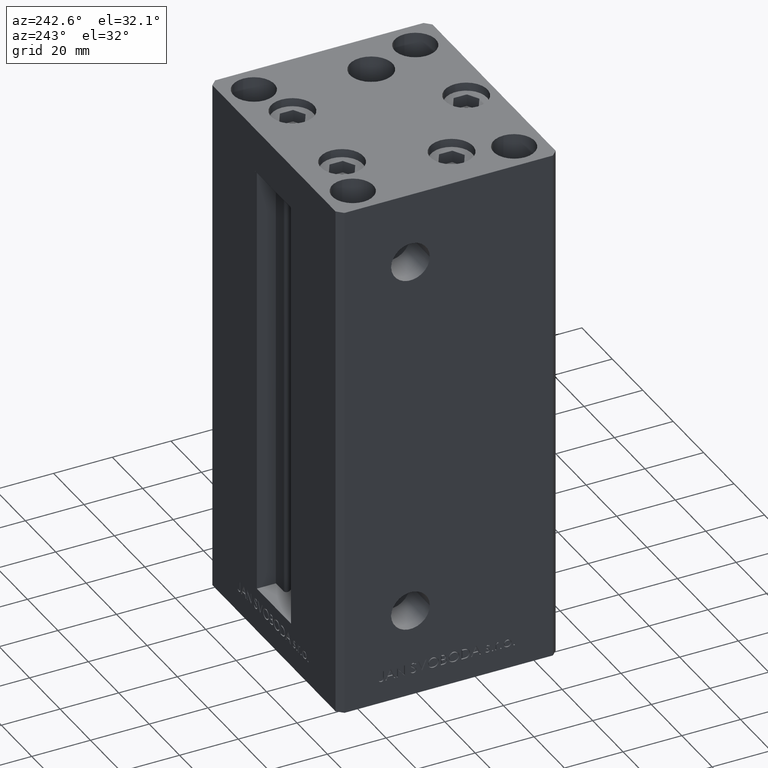
[diagram: clean part render]
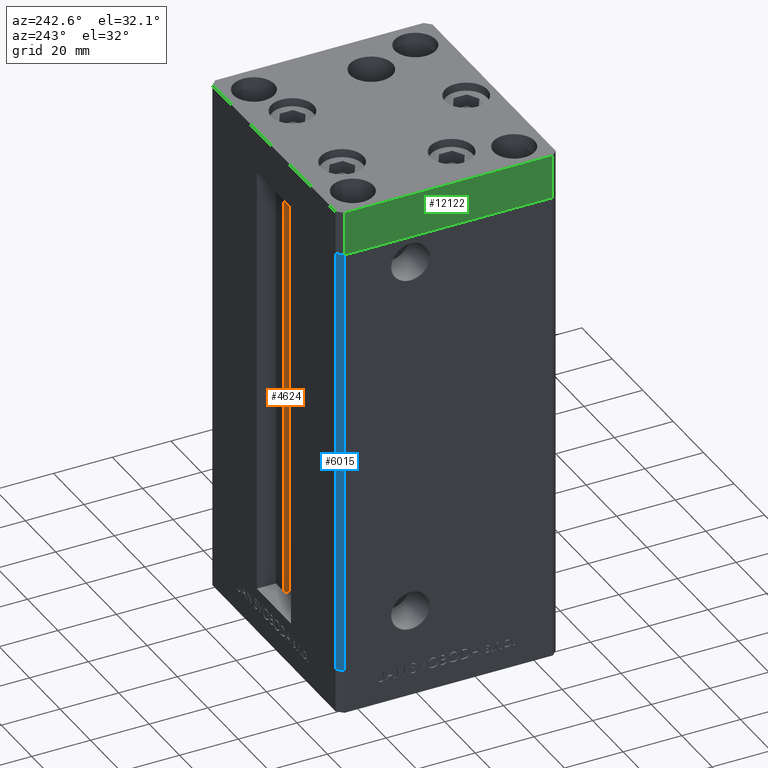
[diagram: same view with three faces highlighted in distinct colors, each labeled with its STEP entity id]
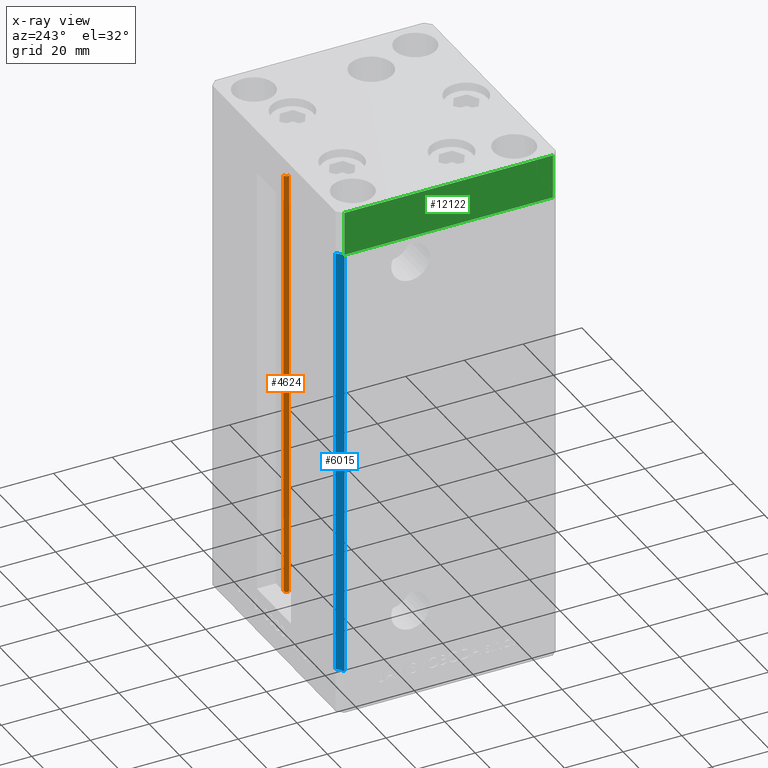
[diagram: x-ray of the same camera — body ghosted, the three highlighted faces saturated]
A machine part, auxiliary view with three faces highlighted in distinct colors.
The next image is the same camera in x-ray (body ghosted, the three faces saturated) — at least one of them is partly hidden behind the body in this view.
Their STEP definitions:

[orange] entity #4624 — the highlighted cylindrical surface (edge-blend (fillet) strip) has radius 0.9333 mm, axis along (0, 0, 1).
#746 = FACE_OUTER_BOUND ( 'NONE', #10490, .T. ) ;
#2101 = CARTESIAN_POINT ( 'NONE',  ( 6.183333333333999704, 30.99999999999999289, 0.000000000000000000 ) ) ;
#3403 = CARTESIAN_POINT ( 'NONE',  ( 6.183333333333999704, 30.99999999999999289, 0.000000000000000000 ) ) ;
#4624 = ADVANCED_FACE ( 'NONE', ( #746 ), #11332, .T. ) ;
#5244 = EDGE_CURVE ( 'NONE', #21239, #6485, #37841, .T. ) ;
#6485 = VERTEX_POINT ( 'NONE', #39663 ) ;
#10490 = EDGE_LOOP ( 'NONE', ( #45398, #15758, #25315, #41429 ) ) ;
#11332 = CYLINDRICAL_SURFACE ( 'NONE', #26830, 0.9333333333340015914 ) ;
#13192 = VECTOR ( 'NONE', #18983, 1000.000000000000000 ) ;
#13558 = DIRECTION ( 'NONE',  ( -0.000000000000000000, -0.000000000000000000, 1.000000000000000000 ) ) ;
#13856 = CARTESIAN_POINT ( 'NONE',  ( 6.183333333333999704, 30.06666666666599141, 148.5000000000000000 ) ) ;
#15758 = ORIENTED_EDGE ( 'NONE', *, *, #29072, .F. ) ;
#16528 = CIRCLE ( 'NONE', #34214, 0.9333333333340015914 ) ;
#17649 = CARTESIAN_POINT ( 'NONE',  ( 5.375042956467943611, 29.59999999999899245, 0.000000000000000000 ) ) ;
#18983 = DIRECTION ( 'NONE',  ( -0.000000000000000000, -0.000000000000000000, 1.000000000000000000 ) ) ;
#19147 = DIRECTION ( 'NONE',  ( -0.000000000000000000, -0.000000000000000000, -1.000000000000000000 ) ) ;
#19392 = CARTESIAN_POINT ( 'NONE',  ( 6.183333333333999704, 30.06666666666599141, 0.000000000000000000 ) ) ;
#20854 = LINE ( 'NONE', #40199, #46085 ) ;
#20929 = CIRCLE ( 'NONE', #27356, 0.9333333333340015914 ) ;
#21239 = VERTEX_POINT ( 'NONE', #2101 ) ;
#23653 = DIRECTION ( 'NONE',  ( 1.000000000000000000, 0.000000000000000000, 0.000000000000000000 ) ) ;
#25315 = ORIENTED_EDGE ( 'NONE', *, *, #31747, .T. ) ;
#26830 = AXIS2_PLACEMENT_3D ( 'NONE', #41979, #26897, #31180 ) ;
#26897 = DIRECTION ( 'NONE',  ( -0.000000000000000000, -0.000000000000000000, 1.000000000000000000 ) ) ;
#27129 = CARTESIAN_POINT ( 'NONE',  ( 5.375042956467944499, 29.59999999999899245, 148.5000000000000000 ) ) ;
#27356 = AXIS2_PLACEMENT_3D ( 'NONE', #19392, #19147, #23653 ) ;
#28133 = VERTEX_POINT ( 'NONE', #27129 ) ;
#29072 = EDGE_CURVE ( 'NONE', #35733, #21239, #20929, .T. ) ;
#29196 = DIRECTION ( 'NONE',  ( 0.000000000000000000, 0.000000000000000000, -1.000000000000000000 ) ) ;
#31180 = DIRECTION ( 'NONE',  ( 1.000000000000000000, 0.000000000000000000, 0.000000000000000000 ) ) ;
#31747 = EDGE_CURVE ( 'NONE', #35733, #28133, #20854, .T. ) ;
#34214 = AXIS2_PLACEMENT_3D ( 'NONE', #13856, #29196, #44516 ) ;
#35733 = VERTEX_POINT ( 'NONE', #17649 ) ;
#37841 = LINE ( 'NONE', #3403, #13192 ) ;
#39663 = CARTESIAN_POINT ( 'NONE',  ( 6.183333333333999704, 30.99999999999999289, 148.5000000000000000 ) ) ;
#40199 = CARTESIAN_POINT ( 'NONE',  ( 5.375042956467943611, 29.59999999999899245, 0.000000000000000000 ) ) ;
#40809 = EDGE_CURVE ( 'NONE', #28133, #6485, #16528, .T. ) ;
#41429 = ORIENTED_EDGE ( 'NONE', *, *, #40809, .T. ) ;
#41979 = CARTESIAN_POINT ( 'NONE',  ( 6.183333333333999704, 30.06666666666599141, 0.000000000000000000 ) ) ;
#44516 = DIRECTION ( 'NONE',  ( 1.000000000000000000, 0.000000000000000000, 0.000000000000000000 ) ) ;
#45398 = ORIENTED_EDGE ( 'NONE', *, *, #5244, .F. ) ;
#46085 = VECTOR ( 'NONE', #13558, 1000.000000000000000 ) ;

[blue] entity #6015 — the highlighted planar face has unit normal (0.7071, -0.7071, 0).
#356 = LINE ( 'NONE', #19707, #26822 ) ;
#4483 = DIRECTION ( 'NONE',  ( -0.000000000000000000, -0.000000000000000000, -1.000000000000000000 ) ) ;
#4880 = DIRECTION ( 'NONE',  ( -0.000000000000000000, -0.000000000000000000, -1.000000000000000000 ) ) ;
#5735 = EDGE_CURVE ( 'NONE', #11849, #6935, #6514, .T. ) ;
#6015 = ADVANCED_FACE ( 'NONE', ( #33834 ), #37100, .F. ) ;
#6514 = LINE ( 'NONE', #48731, #22851 ) ;
#6935 = VERTEX_POINT ( 'NONE', #38509 ) ;
#10253 = CARTESIAN_POINT ( 'NONE',  ( -40.50000000000000000, 37.50000000000000711, 148.5000000000000000 ) ) ;
#10256 = VECTOR ( 'NONE', #4483, 1000.000000000000000 ) ;
#10642 = ORIENTED_EDGE ( 'NONE', *, *, #36597, .F. ) ;
#11849 = VERTEX_POINT ( 'NONE', #10253 ) ;
#12205 = DIRECTION ( 'NONE',  ( -0.7071067811865500152, -0.7071067811865451302, 0.000000000000000000 ) ) ;
#12505 = LINE ( 'NONE', #47421, #10256 ) ;
#15408 = ORIENTED_EDGE ( 'NONE', *, *, #43582, .T. ) ;
#17763 = VERTEX_POINT ( 'NONE', #31589 ) ;
#19707 = CARTESIAN_POINT ( 'NONE',  ( -42.50000000000000711, 35.50000000000001421, 148.5000000000000000 ) ) ;
#20494 = ORIENTED_EDGE ( 'NONE', *, *, #44013, .T. ) ;
#22851 = VECTOR ( 'NONE', #30133, 1000.000000000000114 ) ;
#26822 = VECTOR ( 'NONE', #4880, 1000.000000000000000 ) ;
#27109 = VECTOR ( 'NONE', #12205, 1000.000000000000114 ) ;
#28270 = LINE ( 'NONE', #43107, #27109 ) ;
#29577 = DIRECTION ( 'NONE',  ( 0.7071067811865451302, -0.7071067811865500152, 0.000000000000000000 ) ) ;
#30133 = DIRECTION ( 'NONE',  ( -0.7071067811865500152, -0.7071067811865451302, 0.000000000000000000 ) ) ;
#31589 = CARTESIAN_POINT ( 'NONE',  ( -42.50000000000000711, 35.50000000000001421, 0.000000000000000000 ) ) ;
#33834 = FACE_OUTER_BOUND ( 'NONE', #34193, .T. ) ;
#34193 = EDGE_LOOP ( 'NONE', ( #20494, #10642, #38528, #15408 ) ) ;
#36597 = EDGE_CURVE ( 'NONE', #6935, #17763, #356, .T. ) ;
#37100 = PLANE ( 'NONE',  #39699 ) ;
#38509 = CARTESIAN_POINT ( 'NONE',  ( -42.50000000000000711, 35.50000000000001421, 148.5000000000000000 ) ) ;
#38528 = ORIENTED_EDGE ( 'NONE', *, *, #5735, .F. ) ;
#39699 = AXIS2_PLACEMENT_3D ( 'NONE', #48661, #29577, #41372 ) ;
#41372 = DIRECTION ( 'NONE',  ( 0.7071067811865500152, 0.7071067811865451302, 0.000000000000000000 ) ) ;
#43107 = CARTESIAN_POINT ( 'NONE',  ( -40.50000000000000000, 37.50000000000000711, 0.000000000000000000 ) ) ;
#43582 = EDGE_CURVE ( 'NONE', #11849, #47710, #12505, .T. ) ;
#44013 = EDGE_CURVE ( 'NONE', #47710, #17763, #28270, .T. ) ;
#47421 = CARTESIAN_POINT ( 'NONE',  ( -40.50000000000000000, 37.50000000000000711, 148.5000000000000000 ) ) ;
#47710 = VERTEX_POINT ( 'NONE', #48447 ) ;
#48447 = CARTESIAN_POINT ( 'NONE',  ( -40.50000000000000000, 37.50000000000000711, 0.000000000000000000 ) ) ;
#48661 = CARTESIAN_POINT ( 'NONE',  ( -40.50000000000000000, 37.50000000000000711, 148.5000000000000000 ) ) ;
#48731 = CARTESIAN_POINT ( 'NONE',  ( -40.50000000000000000, 37.50000000000000711, 148.5000000000000000 ) ) ;

[green] entity #12122 — the highlighted planar face has unit normal (-1, -0, 0).
#995 = LINE ( 'NONE', #47484, #27006 ) ;
#3169 = FACE_OUTER_BOUND ( 'NONE', #45106, .T. ) ;
#3416 = EDGE_CURVE ( 'NONE', #16758, #13483, #34248, .T. ) ;
#3429 = ORIENTED_EDGE ( 'NONE', *, *, #40934, .F. ) ;
#3835 = DIRECTION ( 'NONE',  ( 0.000000000000000000, 0.000000000000000000, 1.000000000000000000 ) ) ;
#11650 = EDGE_CURVE ( 'NONE', #34136, #16758, #31629, .T. ) ;
#12122 = ADVANCED_FACE ( 'NONE', ( #3169 ), #18486, .T. ) ;
#13483 = VERTEX_POINT ( 'NONE', #25933 ) ;
#14967 = CARTESIAN_POINT ( 'NONE',  ( -42.50000000000000711, 35.49999999999997158, 0.000000000000000000 ) ) ;
#15792 = CARTESIAN_POINT ( 'NONE',  ( -42.50000000000000711, 35.49999999999997158, -15.00000000000000000 ) ) ;
#16758 = VERTEX_POINT ( 'NONE', #44240 ) ;
#17910 = VECTOR ( 'NONE', #3835, 1000.000000000000000 ) ;
#18486 = PLANE ( 'NONE',  #45412 ) ;
#20526 = ORIENTED_EDGE ( 'NONE', *, *, #40725, .F. ) ;
#25430 = CARTESIAN_POINT ( 'NONE',  ( -42.50000000000000711, 35.49999999999997158, -15.00000000000000000 ) ) ;
#25933 = CARTESIAN_POINT ( 'NONE',  ( -42.50000000000000000, -35.50000000000000711, 0.000000000000000000 ) ) ;
#26291 = DIRECTION ( 'NONE',  ( -1.000000000000000000, -9.773090005503140331E-17, 0.000000000000000000 ) ) ;
#27006 = VECTOR ( 'NONE', #43717, 1000.000000000000000 ) ;
#27600 = CARTESIAN_POINT ( 'NONE',  ( -42.50000000000000711, 35.49999999999997158, -15.00000000000000000 ) ) ;
#28576 = VECTOR ( 'NONE', #45024, 1000.000000000000000 ) ;
#30867 = ORIENTED_EDGE ( 'NONE', *, *, #11650, .T. ) ;
#31629 = LINE ( 'NONE', #27600, #47006 ) ;
#34136 = VERTEX_POINT ( 'NONE', #15792 ) ;
#34248 = LINE ( 'NONE', #34989, #17910 ) ;
#34331 = DIRECTION ( 'NONE',  ( 9.773090005503140331E-17, -1.000000000000000000, 0.000000000000000000 ) ) ;
#34989 = CARTESIAN_POINT ( 'NONE',  ( -42.50000000000000000, -35.50000000000000711, -15.00000000000000000 ) ) ;
#40725 = EDGE_CURVE ( 'NONE', #34136, #49472, #41501, .T. ) ;
#40934 = EDGE_CURVE ( 'NONE', #49472, #13483, #995, .T. ) ;
#41501 = LINE ( 'NONE', #25430, #28576 ) ;
#42937 = DIRECTION ( 'NONE',  ( 9.773090005503140331E-17, -1.000000000000000000, 0.000000000000000000 ) ) ;
#43717 = DIRECTION ( 'NONE',  ( 9.773090005503140331E-17, -1.000000000000000000, 0.000000000000000000 ) ) ;
#44240 = CARTESIAN_POINT ( 'NONE',  ( -42.50000000000000000, -35.50000000000000711, -15.00000000000000000 ) ) ;
#44571 = ORIENTED_EDGE ( 'NONE', *, *, #3416, .T. ) ;
#45024 = DIRECTION ( 'NONE',  ( 0.000000000000000000, 0.000000000000000000, 1.000000000000000000 ) ) ;
#45106 = EDGE_LOOP ( 'NONE', ( #3429, #20526, #30867, #44571 ) ) ;
#45412 = AXIS2_PLACEMENT_3D ( 'NONE', #49158, #26291, #34331 ) ;
#47006 = VECTOR ( 'NONE', #42937, 1000.000000000000000 ) ;
#47484 = CARTESIAN_POINT ( 'NONE',  ( -42.50000000000000711, 35.49999999999997158, 0.000000000000000000 ) ) ;
#49158 = CARTESIAN_POINT ( 'NONE',  ( -42.50000000000000711, 35.49999999999997158, -15.00000000000000000 ) ) ;
#49472 = VERTEX_POINT ( 'NONE', #14967 ) ;